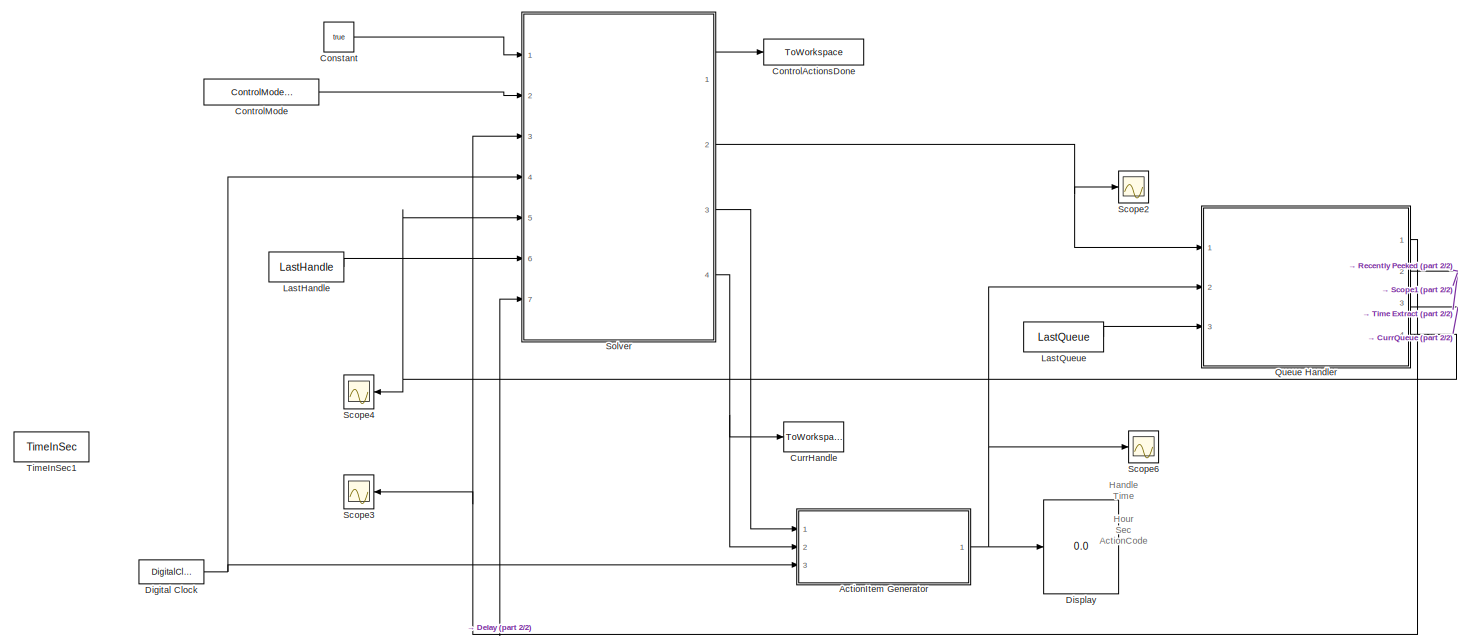
[diagram: root canvas - part 1/2, most of the canvas]
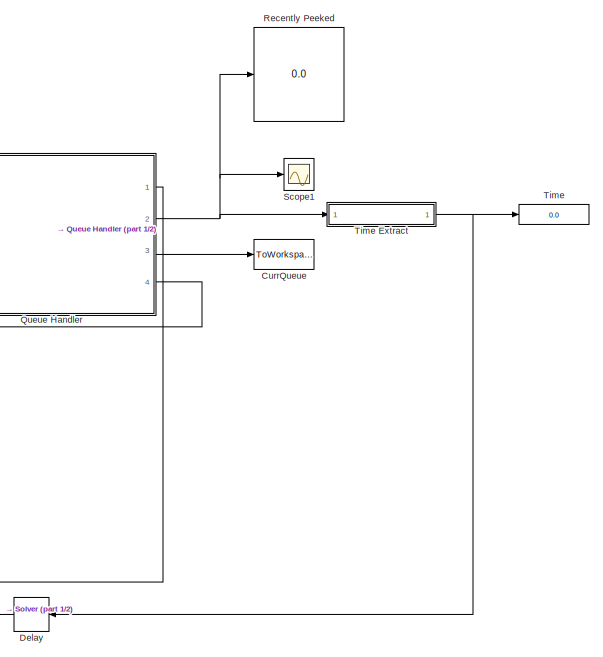
[diagram: root canvas - part 2/2, right side, full height]
MODEL slx_a0e699c50ae5
KIND model
CONFIG AbsTol = auto
CONFIG EnableMultiTasking = off
CONFIG FixedStep = auto
CONFIG MaxStep = auto
CONFIG MinStep = auto
CONFIG RelTol = 1e-3
CONFIG SampleTimeConstraint = Unconstrained
CONFIG Solver = VariableStepDiscrete
CONFIG SolverName = VariableStepDiscrete
CONFIG StartTime = 0.0
CONFIG StopTime = 20.0
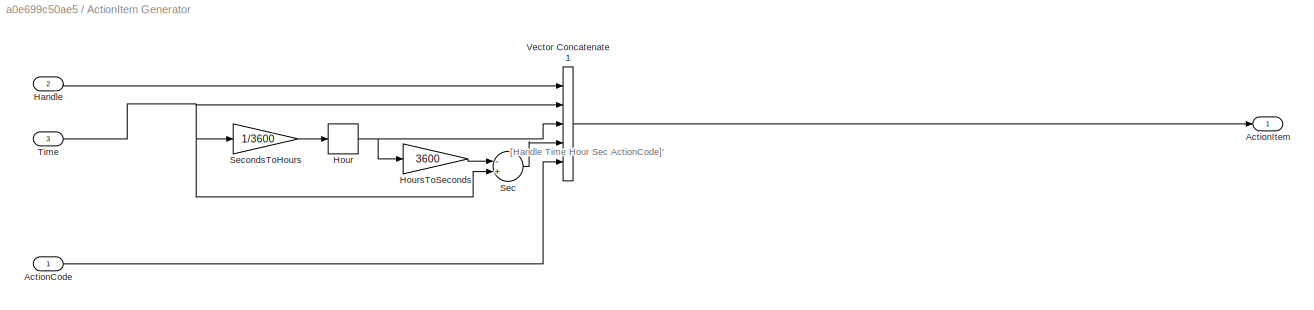
BLOCK [SubSystem] ActionItem Generator
  Ports = [3, 1]
  RequestExecContextInheritance = off
BLOCK [Inport] ActionItem Generator/ActionCode
  IconDisplay = Port number
BLOCK [Outport] ActionItem Generator/ActionItem
  IconDisplay = Port number
BLOCK [Inport] ActionItem Generator/Handle
  IconDisplay = Port number
  Port = 2
BLOCK [Rounding] ActionItem Generator/Hour
BLOCK [Gain] ActionItem Generator/HoursToSeconds
  Gain = 3600
  OutDataTypeStr = Inherit: Inherit via internal rule
  ParamDataTypeStr = Inherit: Inherit via internal rule
  SaturateOnIntegerOverflow = off
BLOCK [Sum] ActionItem Generator/Sec
  InputSameDT = off
  Inputs = -+
  OutDataTypeStr = Inherit: Inherit via internal rule
  Ports = [2, 1]
  SaturateOnIntegerOverflow = off
BLOCK [Gain] ActionItem Generator/SecondsToHours
  Gain = 1/3600
  OutDataTypeStr = Inherit: Inherit via internal rule
  ParamDataTypeStr = Inherit: Inherit via internal rule
  SaturateOnIntegerOverflow = off
BLOCK [Inport] ActionItem Generator/Time
  IconDisplay = Port number
  Port = 3
BLOCK [Concatenate] ActionItem Generator/Vector Concatenate1
  NumInputs = 5
  Ports = [5, 1]
BLOCK [Constant] Constant
  OutDataTypeStr = boolean
  Value = true
BLOCK [ToWorkspace] ControlActionsDone
  FixptAsFi = on
  MaxDataPoints = inf
  Ports = [1]
  SampleTime = -1
  Save2DSignal = 3-D array (concatenate along third dimension)
  SaveFormat = Timeseries
  VariableName = ControlActionsDone
BLOCK [Constant] ControlMode
  OutDataTypeStr = Enum: ControlModes
  Value = ControlModes.STATIC
BLOCK [ToWorkspace] CurrHandle
  FixptAsFi = on
  MaxDataPoints = inf
  Ports = [1]
  SampleTime = -1
  Save2DSignal = 3-D array (concatenate along third dimension)
  SaveFormat = Timeseries
  VariableName = CurrHandle
BLOCK [ToWorkspace] CurrQueue
  FixptAsFi = on
  MaxDataPoints = inf
  Ports = [1]
  SampleTime = 1
  Save2DSignal = 3-D array (concatenate along third dimension)
  SaveFormat = Structure With Time
  VariableName = CurrQueue
BLOCK [Delay] Delay
  DelayLength = 1
  InitialCondition = 0
  InputPortMap = u0
  Ports = [1, 1]
BLOCK [DigitalClock] Digital Clock
BLOCK [Display] Display
  Decimation = 1
  Ports = [1]
BLOCK [Constant] LastHandle
  OutDataTypeStr = double
  Value = LastHandle
BLOCK [Constant] LastQueue
  OutDataTypeStr = double
  Value = LastQueue
  VectorParams1D = off
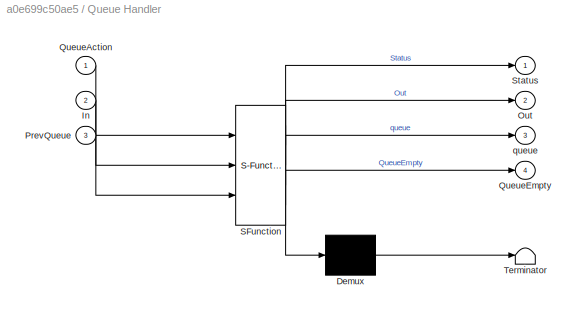
BLOCK [SubSystem] Queue Handler
  ErrorFcn = Stateflow.Translate.translate
  PermitHierarchicalResolution = ExplicitOnly
  Ports = [3, 4]
  RequestExecContextInheritance = off
  SFBlockType = Chart
  TreatAsAtomicUnit = on
BLOCK [Demux] Queue Handler/ Demux 
  Outputs = 1
  Ports = [1, 1]
BLOCK [S-Function] Queue Handler/ SFunction 
  EnableBusSupport = on
  FunctionName = sf_sfun
  InputPortMessageModes = m,n,n
  OutputPortMessageModes = n,m,n,n,m
  Parameters = 0,1,2,3,4,5,false,false;
  PortCounts = [3 5]
  Ports = [3, 5]
  SFcnIsStateOwnerBlock = off
  SFunctionDeploymentMode = off
  Tag = Stateflow S-Function queuetest_sixth 5
BLOCK [Terminator] Queue Handler/ Terminator 
BLOCK [Inport] Queue Handler/In
  IconDisplay = Port number
  Port = 2
BLOCK [Outport] Queue Handler/Out
  IconDisplay = Port number
  Port = 2
BLOCK [Inport] Queue Handler/PrevQueue
  IconDisplay = Port number
  Port = 3
BLOCK [Inport] Queue Handler/QueueAction
  IconDisplay = Port number
BLOCK [Outport] Queue Handler/QueueEmpty
  IconDisplay = Port number
  Port = 4
BLOCK [Outport] Queue Handler/Status
  IconDisplay = Port number
BLOCK [Outport] Queue Handler/queue
  IconDisplay = Port number
  Port = 3
BLOCK [Display] Recently Peeked
  Decimation = 1
  Ports = [1]
BLOCK [Scope] Scope1
  Floating = off
  NumInputPorts = 1
  Ports = [1]
  ScopeSpecificationString = Simulink.scopes.TimeScopeBlockCfg('CurrentConfiguration', extmgr.ConfigurationSet(extmgr.Configuration('Core','General UI',true),extmgr.Configuration('Core','Source UI',true),extmgr.Configuration('Sources','WiredSimulink',true,'DataLoggingVariableName','ScopeData2'),extmgr.Configuration('Visuals','Time Domain',true,'SerializedDisplays',{struct('MinYLimReal','-0.5','MaxYLimReal','4.5','YLabelReal',...<+1470ch>
BLOCK [Scope] Scope2
  Floating = off
  NumInputPorts = 1
  Ports = [1]
  ScopeSpecificationString = Simulink.scopes.TimeScopeBlockCfg('CurrentConfiguration', extmgr.ConfigurationSet(extmgr.Configuration('Core','General UI',true),extmgr.Configuration('Core','Source UI',true),extmgr.Configuration('Sources','WiredSimulink',true,'DataLoggingVariableName','ScopeData3'),extmgr.Configuration('Visuals','Time Domain',true,'SerializedDisplays',{struct('MinYLimReal','-0.875','MaxYLimReal','7.875','YLabelRe...<+1416ch>
BLOCK [Scope] Scope3
  Floating = off
  NumInputPorts = 1
  Ports = [1]
  ScopeSpecificationString = Simulink.scopes.TimeScopeBlockCfg('CurrentConfiguration', extmgr.ConfigurationSet(extmgr.Configuration('Core','General UI',true),extmgr.Configuration('Core','Source UI',true),extmgr.Configuration('Sources','WiredSimulink',true,'DataLoggingVariableName','ScopeData1'),extmgr.Configuration('Visuals','Time Domain',true,'SerializedDisplays',{struct('MinYLimReal','-0.125','MaxYLimReal','1.125','YLabelRe...<+1425ch>
BLOCK [Scope] Scope4
  Floating = off
  NumInputPorts = 1
  Ports = [1]
  ScopeSpecificationString = Simulink.scopes.TimeScopeBlockCfg('CurrentConfiguration', extmgr.ConfigurationSet(extmgr.Configuration('Core','General UI',true),extmgr.Configuration('Core','Source UI',true),extmgr.Configuration('Sources','WiredSimulink',true,'DataLoggingVariableName','ScopeData2'),extmgr.Configuration('Visuals','Time Domain',true,'SerializedDisplays',{struct('MinYLimReal','-0.875','MaxYLimReal','7.875','YLabelRe...<+1422ch>
BLOCK [Scope] Scope6
  Floating = off
  NumInputPorts = 1
  Ports = [1]
  ScopeSpecificationString = Simulink.scopes.TimeScopeBlockCfg('CurrentConfiguration', extmgr.ConfigurationSet(extmgr.Configuration('Core','General UI',true),extmgr.Configuration('Core','Source UI',true),extmgr.Configuration('Sources','WiredSimulink',true,'DataLoggingVariableName','ScopeData3'),extmgr.Configuration('Visuals','Time Domain',true,'SerializedDisplays',{struct('MinYLimReal','-1.25','MaxYLimReal','11.25','YLabelRea...<+1418ch>
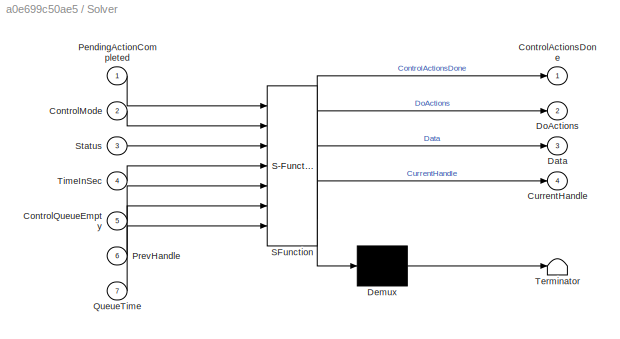
BLOCK [SubSystem] Solver
  ErrorFcn = Stateflow.Translate.translate
  PermitHierarchicalResolution = ExplicitOnly
  Ports = [7, 4]
  RequestExecContextInheritance = off
  SFBlockType = Chart
  TreatAsAtomicUnit = on
BLOCK [Demux] Solver/ Demux 
  Outputs = 1
  Ports = [1, 1]
BLOCK [S-Function] Solver/ SFunction 
  EnableBusSupport = on
  FunctionName = sf_sfun
  InputPortMessageModes = n,n,m,n,m,n,n
  OutputPortMessageModes = n,n,m,n,n
  Parameters = false
  PortCounts = [7 5]
  Ports = [7, 5]
  SFcnIsStateOwnerBlock = off
  SFunctionDeploymentMode = off
  Tag = Stateflow S-Function queuetest_sixth 3
BLOCK [Terminator] Solver/ Terminator 
BLOCK [Outport] Solver/ControlActionsDone
  IconDisplay = Port number
BLOCK [Inport] Solver/ControlMode
  IconDisplay = Port number
  Port = 2
BLOCK [Inport] Solver/ControlQueueEmpty
  IconDisplay = Port number
  Port = 5
BLOCK [Outport] Solver/CurrentHandle
  IconDisplay = Port number
  Port = 4
BLOCK [Outport] Solver/Data
  IconDisplay = Port number
  Port = 3
BLOCK [Outport] Solver/DoActions
  IconDisplay = Port number
  Port = 2
BLOCK [Inport] Solver/PendingActionCompleted
  IconDisplay = Port number
BLOCK [Inport] Solver/PrevHandle
  IconDisplay = Port number
  Port = 6
BLOCK [Inport] Solver/QueueTime
  IconDisplay = Port number
  Port = 7
BLOCK [Inport] Solver/Status
  IconDisplay = Port number
  Port = 3
BLOCK [Inport] Solver/TimeInSec
  IconDisplay = Port number
  Port = 4
BLOCK [Display] Time
  Decimation = 1
  Ports = [1]
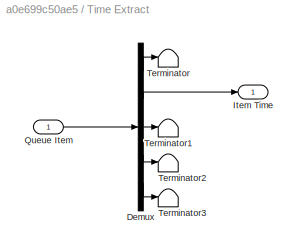
BLOCK [SubSystem] Time Extract
  Ports = [1, 1]
  RequestExecContextInheritance = off
BLOCK [Demux] Time Extract/Demux
  DisplayOption = bar
  Outputs = 5
  Ports = [1, 5]
BLOCK [Outport] Time Extract/Item Time
  IconDisplay = Port number
BLOCK [Inport] Time Extract/Queue Item
  IconDisplay = Port number
BLOCK [Terminator] Time Extract/Terminator
BLOCK [Terminator] Time Extract/Terminator1
BLOCK [Terminator] Time Extract/Terminator2
BLOCK [Terminator] Time Extract/Terminator3
BLOCK [Constant] TimeInSec1
  Commented = on
  OutDataTypeStr = double
  Value = TimeInSec
ANNOTATION (root): Handle Time Hour Sec ActionCode
ANNOTATION ActionItem Generator: [Handle Time Hour Sec ActionCode]'
LINE ActionItem Generator/ActionCode:1 -> ActionItem Generator/Vector Concatenate1:5
LINE ActionItem Generator/Handle:1 -> ActionItem Generator/Vector Concatenate1:1
NET ActionItem Generator/Hour:1 -> ActionItem Generator/HoursToSeconds:1, ActionItem Generator/Vector Concatenate1:3
LINE ActionItem Generator/HoursToSeconds:1 -> ActionItem Generator/Sec:1
LINE ActionItem Generator/Sec:1 -> ActionItem Generator/Vector Concatenate1:4
LINE ActionItem Generator/SecondsToHours:1 -> ActionItem Generator/Hour:1
NET ActionItem Generator/Time:1 -> ActionItem Generator/Sec:2, ActionItem Generator/SecondsToHours:1, ActionItem Generator/Vector Concatenate1:2
LINE ActionItem Generator/Vector Concatenate1:1 -> ActionItem Generator/ActionItem:1
NET ActionItem Generator:1 -> Display:1, Queue Handler:2, Scope6:1
LINE Constant:1 -> Solver:1
LINE ControlMode:1 -> Solver:2
LINE Delay:1 -> Solver:7
NET Digital Clock:1 -> ActionItem Generator:3, Solver:4
LINE LastHandle:1 -> Solver:6
LINE LastQueue:1 -> Queue Handler:3
NET Queue Handler:1 -> Scope3:1, Solver:3
NET Queue Handler:2 -> Recently Peeked:1, Scope1:1, Time Extract:1
LINE Queue Handler:3 -> CurrQueue:1
NET Queue Handler:4 -> Scope4:1, Solver:5
LINE Solver:1 -> ControlActionsDone:1
NET Solver:2 -> Queue Handler:1, Scope2:1
LINE Solver:3 -> ActionItem Generator:1
NET Solver:4 -> ActionItem Generator:2, CurrHandle:1
LINE Time Extract/Demux:1 -> Time Extract/Terminator:1
LINE Time Extract/Demux:2 -> Time Extract/Item Time:1
LINE Time Extract/Demux:3 -> Time Extract/Terminator1:1
LINE Time Extract/Demux:4 -> Time Extract/Terminator2:1
LINE Time Extract/Demux:5 -> Time Extract/Terminator3:1
LINE Time Extract/Queue Item:1 -> Time Extract/Demux:1
NET Time Extract:1 -> Delay:1, Time:1
note: NET lines group one-source signal fan-out (src -> all destinations, sorted); 1:1 wires keep LINE
CHART Solver states=9 transitions=49
  STATE_LABEL 'ControlFlow'
  STATE_LABEL 'SayPush\nen:\nData = ii;\nDoActions.data = ...\n    QueueActions.PUSH;\nsend(DoActions);\nii = ii+1;\nCurrentHandle = ...\n    CurrentHandle + 1;'
  STATE_LABEL '<!DOCTYPE HTML PUBLIC "-//W3C//DTD HTML 4.0//EN" "http://www.w3.org/TR/REC-html40/strict.dtd">\n<html><head><meta name="qrichtext" content="1" /><style type="text/css">\np, li { white-space: pre-wrap; }\n</style></head><body style=" font-family:\'Helvetica\'; font-size:12px; font-weight:400; font-style:normal;">\n<p style=" margin-top:0px; margin-bottom:0px; margin-left:0px; margin-right:0px; -qt-block-...<+545ch>'
  STATE_LABEL '<!DOCTYPE HTML PUBLIC "-//W3C//DTD HTML 4.0//EN" "http://www.w3.org/TR/REC-html40/strict.dtd">\n<html><head><meta name="qrichtext" content="1" /><style type="text/css">\np, li { white-space: pre-wrap; }\n</style></head><body style=" font-family:\'Helvetica\'; font-size:12px; font-weight:400; font-style:normal;">\n<p style=" margin-top:0px; margin-bottom:0px; margin-left:0px; margin-right:0px; -qt-block-...<+561ch>'
  STATE_LABEL '<!DOCTYPE HTML PUBLIC "-//W3C//DTD HTML 4.0//EN" "http://www.w3.org/TR/REC-html40/strict.dtd">\n<html><head><meta name="qrichtext" content="1" /><style type="text/css">\np, li { white-space: pre-wrap; }\n</style></head><body style=" font-family:\'Helvetica\'; font-size:12px; font-weight:400; font-style:normal;">\n<p style=" margin-top:0px; margin-bottom:0px; margin-left:0px; margin-right:0px; -qt-block-...<+553ch>'  <repeated x4 — deduplicated; at blocks: Solver>
  STATE_LABEL '{CurrentHandle = PrevHandle;}'
  STATE_LABEL '[ii <= 10]'
  STATE_LABEL 'Status[Status.data == Statuses.ERROR]'
  STATE_LABEL 'Status[Status.data == Statuses.READY]'
  STATE_LABEL '[ControlMode == ControlModes.STATIC]'
  STATE_LABEL '[LocalControlQueueEmpty]\n% execute nearest set of control actions, but leave time where it is'
  STATE_LABEL '{DoActions.data = QueueActions.DO_NEAREST_ACTIONS;\nsend(DoActions);\n% ignores time advancement\n}'
  STATE_LABEL '{ControlActionsDone = true;}'
  STATE_LABEL '[ControlMode == ControlModes.EVENTDRIVEN]\n% execute nearest set of control actions and advance time to that time'
  STATE_LABEL '{DoActions.data = QueueActions.DO_NEAREST_ACTIONS;\nsend(DoActions);\n% conscious of QueueTime\n}'
  STATE_LABEL '[~PendingActionCompleted]'
  STATE_LABEL '{ControlActionsDone = true;\n% advances time to the next event\n}'
  STATE_LABEL '[ControlMode == ControlModes.TIMEDRIVEN]\n % Do all actions having and action time <= specified time'
  STATE_LABEL '{DoActions.data = QueueActions.DO_ACTIONS;\nsend(DoActions);\n% conscious of QueueTime\n}'
  STATE_LABEL '[~PendingActionCompleted]'
  STATE_LABEL '{ControlActionsDone = true;\n}'
  STATE_LABEL '[ControlMode == ControlModes.MULTIRATE]\n % Execute the nearest set of control actions, but leave time where it is'
  STATE_LABEL '{DoActions.data = QueueActions.DO_MULTIRATE;\nsend(DoActions);\n% conscious of QueueTime\n}'
  STATE_LABEL '[~PendingActionCompleted]'
  STATE_LABEL '{ControlActionsDone = true;\n}'
  STATE_LABEL 'SayPush\nen:\nData = ii;\nDoActions.data = ...\n    QueueActions.PUSH;\nsend(DoActions);\nii = ii+1;\nCurrentHandle = ...\n    CurrentHandle + 1;'
  STATE_LABEL '<!DOCTYPE HTML PUBLIC "-//W3C//DTD HTML 4.0//EN" "http://www.w3.org/TR/REC-html40/strict.dtd">\n<html><head><meta name="qrichtext" content="1" /><style type="text/css">\np, li { white-space: pre-wrap; }\n</style></head><body style=" font-family:\'Helvetica\'; font-size:12px; font-weight:400; font-style:normal;">\n<p style=" margin-top:0px; margin-bottom:0px; margin-left:0px; margin-right:0px; -qt-block-...<+545ch>'
  STATE_LABEL '<!DOCTYPE HTML PUBLIC "-//W3C//DTD HTML 4.0//EN" "http://www.w3.org/TR/REC-html40/strict.dtd">\n<html><head><meta name="qrichtext" content="1" /><style type="text/css">\np, li { white-space: pre-wrap; }\n</style></head><body style=" font-family:\'Helvetica\'; font-size:12px; font-weight:400; font-style:normal;">\n<p style=" margin-top:0px; margin-bottom:0px; margin-left:0px; margin-right:0px; -qt-block-...<+561ch>'
  STATE_LABEL 'CheckIfEmpty'
  STATE_LABEL 'Asleep'
  STATE_LABEL 'QueueEmptyCase\nen: LocalControlQueueEmpty = true;'
  STATE_LABEL 'ControlQueueEmpty'
  STATE_LABEL 'Asleep'
  STATE_LABEL 'QueueEmptyCase\nen: LocalControlQueueEmpty = true;'
CHART Queue Handler states=26 transitions=91
  STATE_LABEL 'Executive'
  STATE_LABEL 'Asleep\nex: Status.data = Statuses.READY; % reset status\n INTERNAL_DONE = false;\n EXECUTIVE_DONE = false;'
  STATE_LABEL 'DoNearestActions'
  STATE_LABEL 'WaitOnPeek\nen: send(QUEUE_PEEK, Internal);'
  STATE_LABEL 'WaitOnPop\nen: send(QUEUE_POP, Internal);'
  STATE_LABEL 'ErrorNoItems\nen: Status.data = ...\n     Statuses.ERROR;\n send(Status);'
  STATE_LABEL '% do only those actions with the same delay time as the first action time\n{q_len_initial = GetQueueSize;\nPendingActionsCompleted = false; % local for now\n}'
  STATE_LABEL '[q_len_initial > 0]'
  STATE_LABEL '{INTERNAL_DONE = false;\n}'
  STATE_LABEL '[jj <= q_len_initial]'
  STATE_LABEL '{INTERNAL_DONE = false;}'
  STATE_LABEL '[INTERNAL_DONE]\n{ActionTime = Out(QF.Time);\njj = 1;}'
  STATE_LABEL '[INTERNAL_DONE]\n%send(DoPendingAction);'
  STATE_LABEL '{jj = jj + 1;}'
  STATE_LABEL '{EXECUTIVE_DONE = true;}'
  STATE_LABEL 'DoAllActions'
  STATE_LABEL 'WaitOnPop\nen: send(QUEUE_POP, Internal);'
  STATE_LABEL 'ErrorNoItems\nen: Status.data = ...\n     Statuses.ERROR;\n send(Status);'
  STATE_LABEL '{q_len_initial = GetQueueSize;}'
  STATE_LABEL '[q_len_initial ~= 0]'
  STATE_LABEL '{ActionTime = Inf;\njj = 1;}'
  STATE_LABEL '[jj <= q_len_initial]'
  STATE_LABEL '{INTERNAL_DONE = false;}'
  STATE_LABEL '{jj = jj + 1;}'
  STATE_LABEL '[INTERNAL_DONE]\n%send(DoPendingAction);'
  STATE_LABEL '{EXECUTIVE_DONE = true;}'
  STATE_LABEL 'Pushing\nen: send(QUEUE_PUSH, Internal);'
  STATE_LABEL 'Peeking\nen: send(QUEUE_PEEK, Internal);'
  STATE_LABEL 'Popping\nen: send(QUEUE_POP, Internal);'
  STATE_LABEL 'ReadyAgain\nStatus.data = Statuses.READY;\nsend(Status);'
  STATE_LABEL 'QueueAction[QueueAction.data == ...\nQueueActions.PEEK]'
  STATE_LABEL 'QueueAction[QueueAction.data == ...\nQueueActions.POP]'
  STATE_LABEL 'QueueAction[QueueAction.data == ...\nQueueActions.PUSH]'
  STATE_LABEL 'QueueAction[QueueAction.data == ...\nQueueActions.DO_ALL_ACTIONS]'
  STATE_LABEL 'QueueAction[QueueAction.data == DO_NEAREST_ACTIONS]'
  STATE_LABEL '[INTERNAL_DONE]'
  STATE_LABEL '[INTERNAL_DONE]'
  STATE_LABEL '[INTERNAL_DONE]'
  STATE_LABEL '[EXECUTIVE_DONE]'
  STATE_LABEL '[EXECUTIVE_DONE]'
